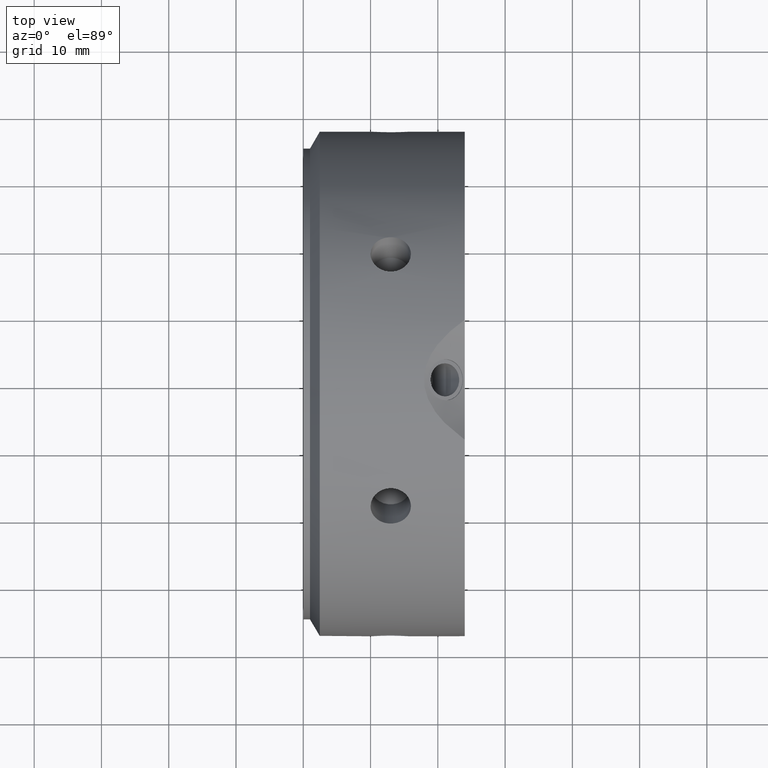
[diagram: clean part render]
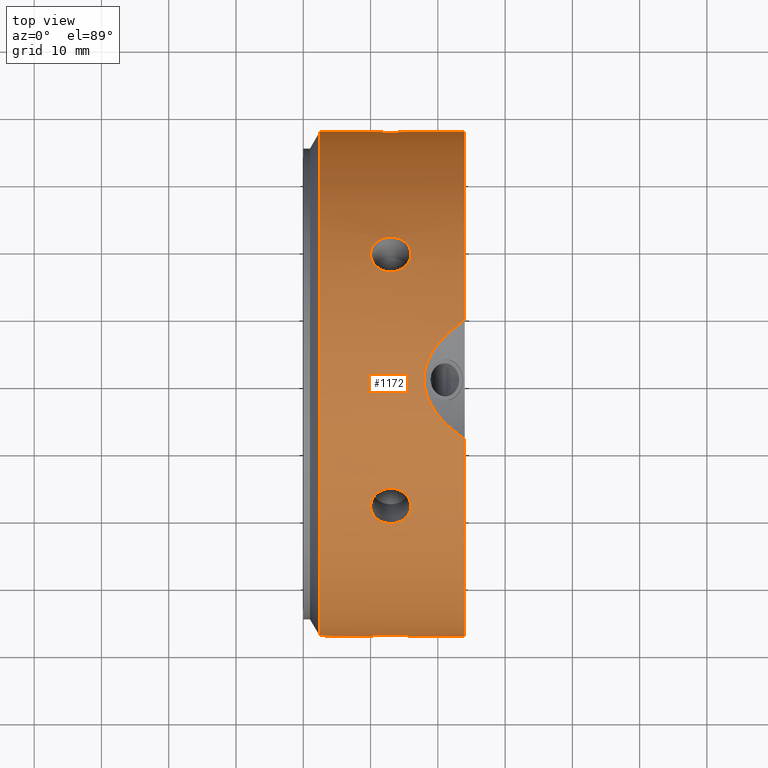
[diagram: same view with one face highlighted and labeled with its STEP entity id]
A machine part, top view. The second image highlights one B-rep face of the part: STEP entity #1172.
In plain terms, the highlighted cylindrical surface (bore or boss wall) has radius 37.5 mm, axis along (1, 0, 0).
Its self-contained STEP definition (entity closure, byte-faithful):
#90=CARTESIAN_POINT('',(10.0,18.750000000000028,32.475952641916436));
#91=VERTEX_POINT('',#90);
#92=CARTESIAN_POINT('',(16.0,18.750000000000032,32.475952641916429));
#93=VERTEX_POINT('',#92);
#94=CARTESIAN_POINT('',(10.0,18.750000000000032,32.475952641916429));
#95=CARTESIAN_POINT('',(10.0,19.076369678770643,32.287523020022888));
#96=CARTESIAN_POINT('',(10.075348362216783,19.421266801591457,32.081164064941156));
#97=CARTESIAN_POINT('',(10.381559582263105,20.050017124984954,31.692010116587475));
#98=CARTESIAN_POINT('',(10.61241354064348,20.334043270032332,31.509487611474405));
#99=CARTESIAN_POINT('',(11.144946142208356,20.78014357711179,31.217090805478342));
#100=CARTESIAN_POINT('',(11.482181087987303,20.972029455853018,31.087739552961011));
#101=CARTESIAN_POINT('',(12.221271273616487,21.225869223534648,30.914980928031845));
#102=CARTESIAN_POINT('',(12.62314023257499,21.287979902919012,30.871862782360836));
#103=CARTESIAN_POINT('',(13.37685976742501,21.287979902919012,30.871862782360836));
#104=CARTESIAN_POINT('',(13.778728726383513,21.225869223534648,30.914980928031845));
#105=CARTESIAN_POINT('',(14.517818912012697,20.972029455853018,31.087739552961011));
#106=CARTESIAN_POINT('',(14.855053857791647,20.78014357711179,31.217090805478339));
#107=CARTESIAN_POINT('',(15.387586459356527,20.334043270032332,31.509487611474405));
#108=CARTESIAN_POINT('',(15.618440417736895,20.050017124984954,31.692010116587475));
#109=CARTESIAN_POINT('',(15.924651637783214,19.421266801591454,32.081164064941156));
#110=CARTESIAN_POINT('',(16.0,19.076369678770643,32.287523020022888));
#111=CARTESIAN_POINT('',(16.0,18.750000000000032,32.475952641916429));
#112=B_SPLINE_CURVE_WITH_KNOTS('',3,(#94,#95,#96,#97,#98,#99,#100,#101,#102,#103,#104,#105,#106,#107,#108,#109,#110,#111),.UNSPECIFIED.,.F.,.U.,(4,2,2,2,2,2,2,2,4),(0.452231406727259,0.565289179863384,0.67834695299951,0.791404883227013,0.904462813454517,1.01752074368202,1.130578673909523,1.243636447045649,1.356694220181775),.UNSPECIFIED.);
#113=EDGE_CURVE('',#91,#93,#112,.T.);
#115=CARTESIAN_POINT('',(15.999999999999998,18.750000000000032,32.475952641916429));
#116=CARTESIAN_POINT('',(15.999999999999998,18.423630321229425,32.664382263809969));
#117=CARTESIAN_POINT('',(15.924651637783215,18.072469662419831,32.859892456324097));
#118=CARTESIAN_POINT('',(15.618440417736894,17.421077295465778,33.20982923484371));
#119=CARTESIAN_POINT('',(15.387586459356521,17.120995096751788,33.364541839237162));
#120=CARTESIAN_POINT('',(14.855053857791646,16.644721881234037,33.604677634805981));
#121=CARTESIAN_POINT('',(14.517818912012697,16.436757471172079,33.706180054164733));
#122=CARTESIAN_POINT('',(13.778728726383511,16.160224229419743,33.839632429003174));
#123=CARTESIAN_POINT('',(13.37685976742501,16.091827480212388,33.871862782360843));
#124=CARTESIAN_POINT('',(13.0,16.091827480212388,33.871862782360843));
#125=CARTESIAN_POINT('',(12.62314023257499,16.091827480212388,33.871862782360843));
#126=CARTESIAN_POINT('',(12.221271273616491,16.160224229419747,33.839632429003174));
#127=CARTESIAN_POINT('',(11.482181087987309,16.436757471172083,33.706180054164733));
#128=CARTESIAN_POINT('',(11.144946142208356,16.644721881234034,33.604677634805981));
#129=CARTESIAN_POINT('',(10.612413540643477,17.120995096751784,33.364541839237162));
#130=CARTESIAN_POINT('',(10.381559582263108,17.421077295465775,33.20982923484371));
#131=CARTESIAN_POINT('',(10.075348362216786,18.072469662419827,32.859892456324097));
#132=CARTESIAN_POINT('',(9.999999999999998,18.423630321229425,32.664382263809969));
#133=CARTESIAN_POINT('',(9.999999999999998,18.750000000000032,32.475952641916429));
#134=B_SPLINE_CURVE_WITH_KNOTS('',3,(#115,#116,#117,#118,#119,#120,#121,#122,#123,#124,#125,#126,#127,#128,#129,#130,#131,#132,#133),.UNSPECIFIED.,.F.,.U.,(4,2,2,2,3,2,2,2,4),(1.356694220181775,1.469751993317901,1.582809766454027,1.69586769668153,1.808925626909033,1.921983557136536,2.035041487364039,2.148099260500166,2.261157033636292),.UNSPECIFIED.);
#135=EDGE_CURVE('',#93,#91,#134,.T.);
#202=CARTESIAN_POINT('',(10.0,37.5,-2.498002E-014));
#203=VERTEX_POINT('',#202);
#204=CARTESIAN_POINT('',(16.0,37.5,-2.664535E-014));
#205=VERTEX_POINT('',#204);
#206=CARTESIAN_POINT('',(9.999999999999998,37.5,-2.393918E-014));
#207=CARTESIAN_POINT('',(9.999999999999998,37.5,-0.376859243787111));
#208=CARTESIAN_POINT('',(10.075348362216783,37.493736464011228,-0.778728391382963));
#209=CARTESIAN_POINT('',(10.381559582263105,37.471094420450669,-1.517819118256254));
#210=CARTESIAN_POINT('',(10.612413540643477,37.455038366784052,-1.855054227762787));
#211=CARTESIAN_POINT('',(11.144946142208356,37.424865458345749,-2.387586829327666));
#212=CARTESIAN_POINT('',(11.482181087987307,37.408786927025034,-2.618440501203736));
#213=CARTESIAN_POINT('',(12.221271273616489,37.386093452954327,-2.924651500971347));
#214=CARTESIAN_POINT('',(12.62314023257499,37.379807383131336,-3.000000000000025));
#215=CARTESIAN_POINT('',(13.37685976742501,37.379807383131336,-3.000000000000025));
#216=CARTESIAN_POINT('',(13.778728726383511,37.386093452954327,-2.924651500971347));
#217=CARTESIAN_POINT('',(14.517818912012695,37.408786927025034,-2.618440501203736));
#218=CARTESIAN_POINT('',(14.855053857791646,37.424865458345749,-2.387586829327666));
#219=CARTESIAN_POINT('',(15.387586459356523,37.455038366784052,-1.855054227762787));
#220=CARTESIAN_POINT('',(15.618440417736895,37.471094420450669,-1.517819118256254));
#221=CARTESIAN_POINT('',(15.924651637783217,37.493736464011228,-0.778728391382964));
#222=CARTESIAN_POINT('',(16.0,37.5,-0.376859243787112));
#223=CARTESIAN_POINT('',(16.0,37.5,-2.518818E-014));
#224=B_SPLINE_CURVE_WITH_KNOTS('',3,(#206,#207,#208,#209,#210,#211,#212,#213,#214,#215,#216,#217,#218,#219,#220,#221,#222,#223),.UNSPECIFIED.,.F.,.U.,(4,2,2,2,2,2,2,2,4),(0.452231406727258,0.565289179863384,0.67834695299951,0.791404883227014,0.904462813454517,1.01752074368202,1.130578673909523,1.243636447045649,1.356694220181775),.UNSPECIFIED.);
#225=EDGE_CURVE('',#203,#205,#224,.T.);
#227=CARTESIAN_POINT('',(16.0,37.5,-2.504941E-014));
#228=CARTESIAN_POINT('',(16.0,37.5,0.376859243787062));
#229=CARTESIAN_POINT('',(15.924651637783217,37.493736464011221,0.778728391382916));
#230=CARTESIAN_POINT('',(15.618440417736895,37.471094420450669,1.517819118256206));
#231=CARTESIAN_POINT('',(15.387586459356523,37.455038366784059,1.855054227762738));
#232=CARTESIAN_POINT('',(14.855053857791646,37.424865458345764,2.387586829327617));
#233=CARTESIAN_POINT('',(14.517818912012693,37.408786927025048,2.618440501203689));
#234=CARTESIAN_POINT('',(13.778728726383509,37.386093452954334,2.924651500971299));
#235=CARTESIAN_POINT('',(13.37685976742501,37.379807383131336,2.999999999999976));
#236=CARTESIAN_POINT('',(13.0,37.379807383131336,2.999999999999976));
#237=CARTESIAN_POINT('',(12.62314023257499,37.379807383131336,2.999999999999976));
#238=CARTESIAN_POINT('',(12.221271273616487,37.386093452954334,2.924651500971298));
#239=CARTESIAN_POINT('',(11.482181087987303,37.408786927025048,2.618440501203686));
#240=CARTESIAN_POINT('',(11.144946142208356,37.424865458345764,2.387586829327617));
#241=CARTESIAN_POINT('',(10.612413540643477,37.455038366784059,1.855054227762738));
#242=CARTESIAN_POINT('',(10.381559582263106,37.471094420450669,1.517819118256203));
#243=CARTESIAN_POINT('',(10.075348362216785,37.493736464011221,0.778728391382913));
#244=CARTESIAN_POINT('',(10.0,37.5,0.376859243787063));
#245=CARTESIAN_POINT('',(10.0,37.5,-2.373102E-014));
#246=B_SPLINE_CURVE_WITH_KNOTS('',3,(#227,#228,#229,#230,#231,#232,#233,#234,#235,#236,#237,#238,#239,#240,#241,#242,#243,#244,#245),.UNSPECIFIED.,.F.,.U.,(4,2,2,2,3,2,2,2,4),(1.356694220181775,1.469751993317901,1.582809766454027,1.69586769668153,1.808925626909033,1.921983557136536,2.035041487364039,2.148099260500165,2.261157033636291),.UNSPECIFIED.);
#247=EDGE_CURVE('',#205,#203,#246,.T.);
#314=CARTESIAN_POINT('',(10.0,18.749999999999993,-32.475952641916457));
#315=VERTEX_POINT('',#314);
#316=CARTESIAN_POINT('',(16.0,18.749999999999989,-32.475952641916457));
#317=VERTEX_POINT('',#316);
#318=CARTESIAN_POINT('',(9.999999999999998,18.749999999999986,-32.475952641916457));
#319=CARTESIAN_POINT('',(9.999999999999998,18.423630321229378,-32.664382263809998));
#320=CARTESIAN_POINT('',(10.075348362216785,18.072469662419785,-32.859892456324125));
#321=CARTESIAN_POINT('',(10.381559582263105,17.421077295465732,-33.209829234843738));
#322=CARTESIAN_POINT('',(10.61241354064348,17.120995096751741,-33.364541839237191));
#323=CARTESIAN_POINT('',(11.144946142208356,16.644721881233991,-33.604677634806002));
#324=CARTESIAN_POINT('',(11.482181087987303,16.436757471172037,-33.706180054164754));
#325=CARTESIAN_POINT('',(12.221271273616487,16.1602242294197,-33.839632429003203));
#326=CARTESIAN_POINT('',(12.62314023257499,16.091827480212338,-33.871862782360857));
#327=CARTESIAN_POINT('',(13.37685976742501,16.091827480212338,-33.871862782360857));
#328=CARTESIAN_POINT('',(13.778728726383509,16.1602242294197,-33.839632429003196));
#329=CARTESIAN_POINT('',(14.517818912012693,16.43675747117204,-33.706180054164754));
#330=CARTESIAN_POINT('',(14.855053857791642,16.644721881233991,-33.604677634806009));
#331=CARTESIAN_POINT('',(15.387586459356521,17.120995096751738,-33.364541839237198));
#332=CARTESIAN_POINT('',(15.618440417736892,17.421077295465725,-33.209829234843738));
#333=CARTESIAN_POINT('',(15.924651637783214,18.072469662419778,-32.859892456324125));
#334=CARTESIAN_POINT('',(16.0,18.423630321229375,-32.664382263809998));
#335=CARTESIAN_POINT('',(16.0,18.749999999999986,-32.475952641916457));
#336=B_SPLINE_CURVE_WITH_KNOTS('',3,(#318,#319,#320,#321,#322,#323,#324,#325,#326,#327,#328,#329,#330,#331,#332,#333,#334,#335),.UNSPECIFIED.,.F.,.U.,(4,2,2,2,2,2,2,2,4),(0.452231406727258,0.565289179863384,0.67834695299951,0.791404883227013,0.904462813454516,1.017520743682019,1.130578673909522,1.243636447045649,1.356694220181775),.UNSPECIFIED.);
#337=EDGE_CURVE('',#315,#317,#336,.T.);
#339=CARTESIAN_POINT('',(16.0,18.749999999999986,-32.475952641916457));
#340=CARTESIAN_POINT('',(16.0,19.076369678770597,-32.287523020022917));
#341=CARTESIAN_POINT('',(15.924651637783215,19.421266801591411,-32.081164064941191));
#342=CARTESIAN_POINT('',(15.618440417736899,20.050017124984908,-31.692010116587511));
#343=CARTESIAN_POINT('',(15.387586459356527,20.334043270032289,-31.509487611474434));
#344=CARTESIAN_POINT('',(14.855053857791647,20.780143577111744,-31.217090805478371));
#345=CARTESIAN_POINT('',(14.517818912012697,20.972029455852979,-31.087739552961043));
#346=CARTESIAN_POINT('',(13.778728726383513,21.225869223534609,-30.914980928031873));
#347=CARTESIAN_POINT('',(13.37685976742501,21.28797990291897,-30.871862782360861));
#348=CARTESIAN_POINT('',(13.0,21.28797990291897,-30.871862782360861));
#349=CARTESIAN_POINT('',(12.62314023257499,21.28797990291897,-30.871862782360861));
#350=CARTESIAN_POINT('',(12.221271273616487,21.225869223534609,-30.914980928031873));
#351=CARTESIAN_POINT('',(11.482181087987303,20.972029455852979,-31.087739552961043));
#352=CARTESIAN_POINT('',(11.144946142208356,20.780143577111744,-31.217090805478371));
#353=CARTESIAN_POINT('',(10.61241354064348,20.334043270032289,-31.509487611474434));
#354=CARTESIAN_POINT('',(10.381559582263103,20.050017124984908,-31.692010116587511));
#355=CARTESIAN_POINT('',(10.075348362216783,19.421266801591411,-32.081164064941191));
#356=CARTESIAN_POINT('',(10.0,19.076369678770593,-32.287523020022917));
#357=CARTESIAN_POINT('',(10.0,18.749999999999986,-32.475952641916457));
#358=B_SPLINE_CURVE_WITH_KNOTS('',3,(#339,#340,#341,#342,#343,#344,#345,#346,#347,#348,#349,#350,#351,#352,#353,#354,#355,#356,#357),.UNSPECIFIED.,.F.,.U.,(4,2,2,2,3,2,2,2,4),(1.356694220181775,1.469751993317901,1.582809766454027,1.69586769668153,1.808925626909033,1.921983557136536,2.035041487364039,2.148099260500165,2.261157033636291),.UNSPECIFIED.);
#359=EDGE_CURVE('',#317,#315,#358,.T.);
#426=CARTESIAN_POINT('',(10.0,-18.750000000000014,-32.475952641916443));
#427=VERTEX_POINT('',#426);
#428=CARTESIAN_POINT('',(16.0,-18.750000000000014,-32.475952641916443));
#429=VERTEX_POINT('',#428);
#430=CARTESIAN_POINT('',(9.999999999999998,-18.750000000000011,-32.475952641916443));
#431=CARTESIAN_POINT('',(9.999999999999998,-19.076369678770622,-32.287523020022903));
#432=CARTESIAN_POINT('',(10.075348362216783,-19.42126680159144,-32.081164064941177));
#433=CARTESIAN_POINT('',(10.381559582263105,-20.050017124984937,-31.692010116587493));
#434=CARTESIAN_POINT('',(10.612413540643477,-20.334043270032318,-31.509487611474416));
#435=CARTESIAN_POINT('',(11.144946142208356,-20.780143577111772,-31.21709080547835));
#436=CARTESIAN_POINT('',(11.482181087987307,-20.972029455853004,-31.087739552961033));
#437=CARTESIAN_POINT('',(12.221271273616489,-21.225869223534634,-30.914980928031866));
#438=CARTESIAN_POINT('',(12.62314023257499,-21.287979902918998,-30.87186278236085));
#439=CARTESIAN_POINT('',(13.37685976742501,-21.287979902918998,-30.87186278236085));
#440=CARTESIAN_POINT('',(13.778728726383511,-21.225869223534627,-30.914980928031859));
#441=CARTESIAN_POINT('',(14.517818912012695,-20.972029455853001,-31.087739552961029));
#442=CARTESIAN_POINT('',(14.855053857791642,-20.780143577111772,-31.21709080547835));
#443=CARTESIAN_POINT('',(15.387586459356521,-20.334043270032318,-31.509487611474416));
#444=CARTESIAN_POINT('',(15.618440417736892,-20.050017124984937,-31.692010116587493));
#445=CARTESIAN_POINT('',(15.924651637783214,-19.421266801591443,-32.081164064941177));
#446=CARTESIAN_POINT('',(16.0,-19.076369678770625,-32.287523020022888));
#447=CARTESIAN_POINT('',(16.0,-18.750000000000014,-32.475952641916436));
#448=B_SPLINE_CURVE_WITH_KNOTS('',3,(#430,#431,#432,#433,#434,#435,#436,#437,#438,#439,#440,#441,#442,#443,#444,#445,#446,#447),.UNSPECIFIED.,.F.,.U.,(4,2,2,2,2,2,2,2,4),(0.452231406727259,0.565289179863385,0.678346952999511,0.791404883227014,0.904462813454517,1.01752074368202,1.130578673909523,1.243636447045649,1.356694220181775),.UNSPECIFIED.);
#449=EDGE_CURVE('',#427,#429,#448,.T.);
#451=CARTESIAN_POINT('',(16.0,-18.750000000000014,-32.475952641916443));
#452=CARTESIAN_POINT('',(16.0,-18.423630321229403,-32.664382263809983));
#453=CARTESIAN_POINT('',(15.924651637783217,-18.07246966241981,-32.859892456324104));
#454=CARTESIAN_POINT('',(15.618440417736899,-17.421077295465757,-33.209829234843717));
#455=CARTESIAN_POINT('',(15.387586459356527,-17.12099509675177,-33.364541839237184));
#456=CARTESIAN_POINT('',(14.855053857791647,-16.64472188123402,-33.604677634805995));
#457=CARTESIAN_POINT('',(14.517818912012697,-16.436757471172061,-33.70618005416474));
#458=CARTESIAN_POINT('',(13.778728726383513,-16.160224229419725,-33.839632429003181));
#459=CARTESIAN_POINT('',(13.37685976742501,-16.091827480212366,-33.87186278236085));
#460=CARTESIAN_POINT('',(13.0,-16.091827480212366,-33.87186278236085));
#461=CARTESIAN_POINT('',(12.62314023257499,-16.091827480212366,-33.87186278236085));
#462=CARTESIAN_POINT('',(12.221271273616489,-16.160224229419722,-33.839632429003188));
#463=CARTESIAN_POINT('',(11.482181087987307,-16.436757471172058,-33.70618005416474));
#464=CARTESIAN_POINT('',(11.144946142208356,-16.644721881234013,-33.604677634805995));
#465=CARTESIAN_POINT('',(10.612413540643477,-17.120995096751763,-33.364541839237184));
#466=CARTESIAN_POINT('',(10.381559582263108,-17.421077295465754,-33.209829234843717));
#467=CARTESIAN_POINT('',(10.075348362216786,-18.072469662419806,-32.859892456324104));
#468=CARTESIAN_POINT('',(9.999999999999998,-18.4236303212294,-32.664382263809983));
#469=CARTESIAN_POINT('',(9.999999999999998,-18.750000000000011,-32.475952641916443));
#470=B_SPLINE_CURVE_WITH_KNOTS('',3,(#451,#452,#453,#454,#455,#456,#457,#458,#459,#460,#461,#462,#463,#464,#465,#466,#467,#468,#469),.UNSPECIFIED.,.F.,.U.,(4,2,2,2,3,2,2,2,4),(1.356694220181775,1.469751993317901,1.582809766454027,1.69586769668153,1.808925626909033,1.921983557136536,2.035041487364039,2.148099260500165,2.261157033636292),.UNSPECIFIED.);
#471=EDGE_CURVE('',#429,#427,#470,.T.);
#538=CARTESIAN_POINT('',(10.0,-37.5,1.040834E-014));
#539=VERTEX_POINT('',#538);
#540=CARTESIAN_POINT('',(16.0,-37.5,1.110223E-014));
#541=VERTEX_POINT('',#540);
#542=CARTESIAN_POINT('',(9.999999999999998,-37.5,9.298118E-015));
#543=CARTESIAN_POINT('',(9.999999999999998,-37.5,0.376859243787096));
#544=CARTESIAN_POINT('',(10.075348362216783,-37.493736464011228,0.778728391382949));
#545=CARTESIAN_POINT('',(10.381559582263105,-37.471094420450669,1.517819118256239));
#546=CARTESIAN_POINT('',(10.612413540643477,-37.455038366784059,1.855054227762772));
#547=CARTESIAN_POINT('',(11.144946142208356,-37.424865458345764,2.387586829327652));
#548=CARTESIAN_POINT('',(11.482181087987307,-37.408786927025034,2.618440501203722));
#549=CARTESIAN_POINT('',(12.221271273616489,-37.386093452954327,2.924651500971333));
#550=CARTESIAN_POINT('',(12.62314023257499,-37.379807383131336,3.000000000000011));
#551=CARTESIAN_POINT('',(13.37685976742501,-37.379807383131336,3.000000000000011));
#552=CARTESIAN_POINT('',(13.778728726383511,-37.386093452954327,2.924651500971333));
#553=CARTESIAN_POINT('',(14.517818912012695,-37.408786927025034,2.618440501203722));
#554=CARTESIAN_POINT('',(14.855053857791646,-37.424865458345764,2.387586829327652));
#555=CARTESIAN_POINT('',(15.387586459356521,-37.455038366784052,1.855054227762773));
#556=CARTESIAN_POINT('',(15.618440417736892,-37.471094420450662,1.517819118256241));
#557=CARTESIAN_POINT('',(15.924651637783214,-37.493736464011221,0.77872839138295));
#558=CARTESIAN_POINT('',(15.999999999999998,-37.5,0.376859243787098));
#559=CARTESIAN_POINT('',(15.999999999999998,-37.5,1.054712E-014));
#560=B_SPLINE_CURVE_WITH_KNOTS('',3,(#542,#543,#544,#545,#546,#547,#548,#549,#550,#551,#552,#553,#554,#555,#556,#557,#558,#559),.UNSPECIFIED.,.F.,.U.,(4,2,2,2,2,2,2,2,4),(0.452231406727258,0.565289179863384,0.678346952999511,0.791404883227014,0.904462813454517,1.01752074368202,1.130578673909523,1.243636447045649,1.356694220181775),.UNSPECIFIED.);
#561=EDGE_CURVE('',#539,#541,#560,.T.);
#563=CARTESIAN_POINT('',(15.999999999999998,-37.5,1.006140E-014));
#564=CARTESIAN_POINT('',(15.999999999999998,-37.5,-0.376859243787077));
#565=CARTESIAN_POINT('',(15.924651637783215,-37.493736464011221,-0.77872839138293));
#566=CARTESIAN_POINT('',(15.618440417736894,-37.471094420450662,-1.51781911825622));
#567=CARTESIAN_POINT('',(15.387586459356523,-37.455038366784059,-1.855054227762753));
#568=CARTESIAN_POINT('',(14.855053857791646,-37.424865458345764,-2.387586829327631));
#569=CARTESIAN_POINT('',(14.517818912012693,-37.408786927025041,-2.618440501203704));
#570=CARTESIAN_POINT('',(13.778728726383509,-37.386093452954327,-2.924651500971314));
#571=CARTESIAN_POINT('',(13.37685976742501,-37.379807383131336,-2.99999999999999));
#572=CARTESIAN_POINT('',(13.0,-37.379807383131336,-2.99999999999999));
#573=CARTESIAN_POINT('',(12.62314023257499,-37.379807383131336,-2.99999999999999));
#574=CARTESIAN_POINT('',(12.221271273616489,-37.386093452954327,-2.924651500971313));
#575=CARTESIAN_POINT('',(11.482181087987307,-37.408786927025041,-2.618440501203702));
#576=CARTESIAN_POINT('',(11.144946142208356,-37.424865458345764,-2.387586829327632));
#577=CARTESIAN_POINT('',(10.612413540643477,-37.455038366784059,-1.855054227762753));
#578=CARTESIAN_POINT('',(10.381559582263106,-37.471094420450662,-1.517819118256217));
#579=CARTESIAN_POINT('',(10.075348362216785,-37.493736464011221,-0.778728391382927));
#580=CARTESIAN_POINT('',(9.999999999999998,-37.5,-0.376859243787077));
#581=CARTESIAN_POINT('',(9.999999999999998,-37.5,9.436896E-015));
#582=B_SPLINE_CURVE_WITH_KNOTS('',3,(#563,#564,#565,#566,#567,#568,#569,#570,#571,#572,#573,#574,#575,#576,#577,#578,#579,#580,#581),.UNSPECIFIED.,.F.,.U.,(4,2,2,2,3,2,2,2,4),(1.356694220181775,1.469751993317901,1.582809766454027,1.695867696681531,1.808925626909034,1.921983557136537,2.035041487364039,2.148099260500166,2.261157033636292),.UNSPECIFIED.);
#583=EDGE_CURVE('',#541,#539,#582,.T.);
#687=CARTESIAN_POINT('',(10.0,-18.749999999999996,32.47595264191645));
#688=VERTEX_POINT('',#687);
#689=CARTESIAN_POINT('',(16.0,-18.749999999999993,32.47595264191645));
#690=VERTEX_POINT('',#689);
#691=CARTESIAN_POINT('',(10.0,-18.749999999999996,32.47595264191645));
#692=CARTESIAN_POINT('',(10.0,-18.423630321229385,32.664382263809991));
#693=CARTESIAN_POINT('',(10.075348362216785,-18.072469662419795,32.859892456324118));
#694=CARTESIAN_POINT('',(10.381559582263105,-17.421077295465743,33.209829234843731));
#695=CARTESIAN_POINT('',(10.612413540643475,-17.120995096751749,33.364541839237191));
#696=CARTESIAN_POINT('',(11.144946142208354,-16.644721881233998,33.604677634806002));
#697=CARTESIAN_POINT('',(11.482181087987309,-16.43675747117204,33.706180054164754));
#698=CARTESIAN_POINT('',(12.221271273616491,-16.160224229419704,33.839632429003196));
#699=CARTESIAN_POINT('',(12.62314023257499,-16.091827480212345,33.871862782360857));
#700=CARTESIAN_POINT('',(13.37685976742501,-16.091827480212345,33.871862782360857));
#701=CARTESIAN_POINT('',(13.778728726383509,-16.160224229419704,33.839632429003196));
#702=CARTESIAN_POINT('',(14.517818912012693,-16.43675747117204,33.706180054164754));
#703=CARTESIAN_POINT('',(14.855053857791646,-16.644721881233995,33.604677634806002));
#704=CARTESIAN_POINT('',(15.387586459356521,-17.120995096751741,33.364541839237191));
#705=CARTESIAN_POINT('',(15.618440417736892,-17.421077295465736,33.209829234843738));
#706=CARTESIAN_POINT('',(15.924651637783215,-18.072469662419792,32.859892456324125));
#707=CARTESIAN_POINT('',(16.0,-18.423630321229389,32.664382263809991));
#708=CARTESIAN_POINT('',(16.0,-18.749999999999996,32.47595264191645));
#709=B_SPLINE_CURVE_WITH_KNOTS('',3,(#691,#692,#693,#694,#695,#696,#697,#698,#699,#700,#701,#702,#703,#704,#705,#706,#707,#708),.UNSPECIFIED.,.F.,.U.,(4,2,2,2,2,2,2,2,4),(0.452231406727258,0.565289179863384,0.67834695299951,0.791404883227014,0.904462813454517,1.01752074368202,1.130578673909523,1.243636447045649,1.356694220181775),.UNSPECIFIED.);
#710=EDGE_CURVE('',#688,#690,#709,.T.);
#712=CARTESIAN_POINT('',(16.0,-18.749999999999996,32.47595264191645));
#713=CARTESIAN_POINT('',(16.0,-19.076369678770607,32.28752302002291));
#714=CARTESIAN_POINT('',(15.924651637783215,-19.421266801591418,32.081164064941184));
#715=CARTESIAN_POINT('',(15.618440417736894,-20.050017124984919,31.6920101165875));
#716=CARTESIAN_POINT('',(15.387586459356521,-20.334043270032296,31.50948761147443));
#717=CARTESIAN_POINT('',(14.855053857791646,-20.780143577111755,31.21709080547836));
#718=CARTESIAN_POINT('',(14.517818912012693,-20.972029455852987,31.08773955296104));
#719=CARTESIAN_POINT('',(13.778728726383509,-21.225869223534609,30.91498092803187));
#720=CARTESIAN_POINT('',(13.37685976742501,-21.287979902918977,30.871862782360857));
#721=CARTESIAN_POINT('',(13.0,-21.287979902918977,30.871862782360857));
#722=CARTESIAN_POINT('',(12.62314023257499,-21.287979902918977,30.871862782360857));
#723=CARTESIAN_POINT('',(12.221271273616489,-21.225869223534616,30.914980928031873));
#724=CARTESIAN_POINT('',(11.482181087987307,-20.972029455852987,31.087739552961043));
#725=CARTESIAN_POINT('',(11.144946142208356,-20.780143577111755,31.21709080547836));
#726=CARTESIAN_POINT('',(10.61241354064348,-20.334043270032296,31.50948761147443));
#727=CARTESIAN_POINT('',(10.381559582263103,-20.050017124984912,31.692010116587504));
#728=CARTESIAN_POINT('',(10.075348362216783,-19.421266801591418,32.081164064941191));
#729=CARTESIAN_POINT('',(9.999999999999998,-19.076369678770604,32.28752302002291));
#730=CARTESIAN_POINT('',(9.999999999999998,-18.749999999999996,32.47595264191645));
#731=B_SPLINE_CURVE_WITH_KNOTS('',3,(#712,#713,#714,#715,#716,#717,#718,#719,#720,#721,#722,#723,#724,#725,#726,#727,#728,#729,#730),.UNSPECIFIED.,.F.,.U.,(4,2,2,2,3,2,2,2,4),(1.356694220181775,1.469751993317901,1.582809766454027,1.695867696681531,1.808925626909034,1.921983557136537,2.035041487364039,2.148099260500166,2.261157033636291),.UNSPECIFIED.);
#732=EDGE_CURVE('',#690,#688,#731,.T.);
#873=CARTESIAN_POINT('',(23.999999999999993,27.084205445662803,-25.936380151770003));
#874=VERTEX_POINT('',#873);
#875=CARTESIAN_POINT('',(23.999999999999993,36.003666816474713,-10.487419881375864));
#876=VERTEX_POINT('',#875);
#884=CARTESIAN_POINT('',(23.999999999999993,36.003666816474713,-10.48741988137586));
#885=CARTESIAN_POINT('',(23.591222852768247,35.920820448086161,-10.771834263383521));
#886=CARTESIAN_POINT('',(23.192951334266763,35.832224315166272,-11.063487322551966));
#887=CARTESIAN_POINT('',(21.578974394589512,35.433595490792754,-12.317137056092534));
#888=CARTESIAN_POINT('',(20.33738308284477,35.026038043125297,-13.465343061169888));
#889=CARTESIAN_POINT('',(18.96768945608455,34.216314970598631,-15.361185188594394));
#890=CARTESIAN_POINT('',(18.592377661744834,33.913037882892873,-16.02265118637844));
#891=CARTESIAN_POINT('',(18.077159653087154,33.240966849811372,-17.374049973465699));
#892=CARTESIAN_POINT('',(17.937822173508952,32.87196067057635,-18.064093974155849));
#893=CARTESIAN_POINT('',(17.937822173508952,32.079944613256515,-19.435906025844197));
#894=CARTESIAN_POINT('',(18.077159653087151,31.666852068547303,-20.100496751560236));
#895=CARTESIAN_POINT('',(18.592377661744827,30.832541904827014,-21.358226732900086));
#896=CARTESIAN_POINT('',(18.967689456084546,30.411334090859292,-21.951605394131061));
#897=CARTESIAN_POINT('',(20.33738308284477,29.174348183208259,-23.600767208681805));
#898=CARTESIAN_POINT('',(21.578974394589522,28.383751337867142,-24.527825314402037));
#899=CARTESIAN_POINT('',(23.192951334266766,27.497373233360186,-25.499872869760509));
#900=CARTESIAN_POINT('',(23.591222852768247,27.289092341488818,-25.722425901130407));
#901=CARTESIAN_POINT('',(23.999999999999993,27.084205445662807,-25.93638015177001));
#902=B_SPLINE_CURVE_WITH_KNOTS('',3,(#884,#885,#886,#887,#888,#889,#890,#891,#892,#893,#894,#895,#896,#897,#898,#899,#900,#901),.UNSPECIFIED.,.F.,.U.,(4,2,2,2,2,2,2,2,4),(2.249574857920945,2.39901854660144,2.874228180993344,3.111832998189297,3.349437815385249,3.587042632581202,3.824647449777154,4.299857084169059,4.449300772849552),.UNSPECIFIED.);
#903=EDGE_CURVE('',#876,#874,#902,.T.);
#1044=CARTESIAN_POINT('',(23.999999999999989,-36.003666816474713,-10.487419881375832));
#1045=VERTEX_POINT('',#1044);
#1046=CARTESIAN_POINT('',(24.0,-27.084205445662825,-25.936380151769992));
#1047=VERTEX_POINT('',#1046);
#1055=CARTESIAN_POINT('',(24.000000000000007,-27.084205445662821,-25.936380151769988));
#1056=CARTESIAN_POINT('',(23.545226590725825,-27.312146544526584,-25.69835142474599));
#1057=CARTESIAN_POINT('',(23.103526831479329,-27.544244549262483,-25.449731772394259));
#1058=CARTESIAN_POINT('',(21.478498178872204,-28.446747993374125,-24.454342139774003));
#1059=CARTESIAN_POINT('',(20.268284854862074,-29.2265871826636,-23.535054474524031));
#1060=CARTESIAN_POINT('',(18.936124431938136,-30.445308145741052,-21.904195461466568));
#1061=CARTESIAN_POINT('',(18.571711276666115,-30.86008892884832,-21.318018767266075));
#1062=CARTESIAN_POINT('',(18.07227208265337,-31.680993626663355,-20.077790112192634));
#1063=CARTESIAN_POINT('',(17.937822173508962,-32.087107485669073,-19.423499566897505));
#1064=CARTESIAN_POINT('',(17.937822173508962,-32.864797798163828,-18.076500433102471));
#1065=CARTESIAN_POINT('',(18.07227208265337,-33.22837310234253,-17.397650241727021));
#1066=CARTESIAN_POINT('',(18.571711276666115,-33.891990275230015,-16.066611591796494));
#1067=CARTESIAN_POINT('',(18.936124431938151,-34.192243791960379,-15.414312549523753));
#1068=CARTESIAN_POINT('',(20.268284854862088,-34.995248645720238,-13.543439728845305));
#1069=CARTESIAN_POINT('',(21.478498178872208,-35.401455522567666,-12.408435347428973));
#1070=CARTESIAN_POINT('',(23.103526831479329,-35.81223650902465,-11.129149621515218));
#1071=CARTESIAN_POINT('',(23.545226590725818,-35.911498441473341,-10.80383702707039));
#1072=CARTESIAN_POINT('',(23.999999999999993,-36.003666816474713,-10.487419881375837));
#1073=B_SPLINE_CURVE_WITH_KNOTS('',3,(#1055,#1056,#1057,#1058,#1059,#1060,#1061,#1062,#1063,#1064,#1065,#1066,#1067,#1068,#1069,#1070,#1071,#1072),.UNSPECIFIED.,.F.,.U.,(4,2,2,2,2,2,2,2,4),(2.180258437133951,2.346212664770185,2.812826852267037,3.046133946015463,3.279441039763889,3.512748133512316,3.746055227260742,4.212669414757595,4.378623642393827),.UNSPECIFIED.);
#1074=EDGE_CURVE('',#1047,#1045,#1073,.T.);
#1082=CARTESIAN_POINT('',(13.221687836487027,0.0,0.0));
#1083=DIRECTION('',(1.0,0.0,0.0));
#1084=DIRECTION('',(0.0,1.0,0.0));
#1085=AXIS2_PLACEMENT_3D('',#1082,#1083,#1084);
#1086=CYLINDRICAL_SURFACE('',#1085,37.5);
#1087=CARTESIAN_POINT('',(2.443375672974056,37.499999999999993,0.0));
#1088=VERTEX_POINT('',#1087);
#1089=CARTESIAN_POINT('',(2.443375672974056,0.0,0.0));
#1090=DIRECTION('',(1.0,0.0,0.0));
#1091=DIRECTION('',(0.0,1.0,0.0));
#1092=AXIS2_PLACEMENT_3D('',#1089,#1090,#1091);
#1093=CIRCLE('',#1092,37.499999999999993);
#1094=EDGE_CURVE('',#1088,#1088,#1093,.T.);
#1095=ORIENTED_EDGE('',*,*,#1094,.T.);
#1096=EDGE_LOOP('',(#1095));
#1097=FACE_OUTER_BOUND('',#1096,.T.);
#1098=ORIENTED_EDGE('',*,*,#113,.T.);
#1099=ORIENTED_EDGE('',*,*,#135,.T.);
#1100=EDGE_LOOP('',(#1098,#1099));
#1101=FACE_BOUND('',#1100,.T.);
#1102=ORIENTED_EDGE('',*,*,#225,.T.);
#1103=ORIENTED_EDGE('',*,*,#247,.T.);
#1104=EDGE_LOOP('',(#1102,#1103));
#1105=FACE_BOUND('',#1104,.T.);
#1106=ORIENTED_EDGE('',*,*,#337,.T.);
#1107=ORIENTED_EDGE('',*,*,#359,.T.);
#1108=EDGE_LOOP('',(#1106,#1107));
#1109=FACE_BOUND('',#1108,.T.);
#1110=ORIENTED_EDGE('',*,*,#449,.T.);
#1111=ORIENTED_EDGE('',*,*,#471,.T.);
#1112=EDGE_LOOP('',(#1110,#1111));
#1113=FACE_BOUND('',#1112,.T.);
#1114=ORIENTED_EDGE('',*,*,#561,.T.);
#1115=ORIENTED_EDGE('',*,*,#583,.T.);
#1116=EDGE_LOOP('',(#1114,#1115));
#1117=FACE_BOUND('',#1116,.T.);
#1118=ORIENTED_EDGE('',*,*,#710,.T.);
#1119=ORIENTED_EDGE('',*,*,#732,.T.);
#1120=EDGE_LOOP('',(#1118,#1119));
#1121=FACE_BOUND('',#1120,.T.);
#1122=ORIENTED_EDGE('',*,*,#903,.T.);
#1123=CARTESIAN_POINT('',(23.999999999999993,0.0,0.0));
#1124=DIRECTION('',(1.0,0.0,0.0));
#1125=DIRECTION('',(0.0,1.0,0.0));
#1126=AXIS2_PLACEMENT_3D('',#1123,#1124,#1125);
#1127=CIRCLE('',#1126,37.5);
#1128=EDGE_CURVE('',#1047,#874,#1127,.T.);
#1129=ORIENTED_EDGE('',*,*,#1128,.F.);
#1130=ORIENTED_EDGE('',*,*,#1074,.T.);
#1131=CARTESIAN_POINT('',(23.999999999999993,-8.919461370811899,36.423800033145838));
#1132=VERTEX_POINT('',#1131);
#1133=CARTESIAN_POINT('',(23.999999999999993,0.0,0.0));
#1134=DIRECTION('',(1.0,0.0,0.0));
#1135=DIRECTION('',(0.0,1.0,0.0));
#1136=AXIS2_PLACEMENT_3D('',#1133,#1134,#1135);
#1137=CIRCLE('',#1136,37.5);
#1138=EDGE_CURVE('',#1132,#1045,#1137,.T.);
#1139=ORIENTED_EDGE('',*,*,#1138,.F.);
#1140=CARTESIAN_POINT('',(23.999999999999993,8.919461370811899,36.423800033145838));
#1141=VERTEX_POINT('',#1140);
#1142=CARTESIAN_POINT('',(23.999999999999993,-8.919461370811895,36.423800033145838));
#1143=CARTESIAN_POINT('',(22.940521618444212,-8.173707418678708,36.606420285896213));
#1144=CARTESIAN_POINT('',(21.954688080069889,-7.370227704359688,36.779402366628375));
#1145=CARTESIAN_POINT('',(20.252614754639101,-5.652443625948842,37.081355389187365));
#1146=CARTESIAN_POINT('',(19.43469508800975,-4.641811330155842,37.228417655830356));
#1147=CARTESIAN_POINT('',(18.56244908114158,-2.971189676152273,37.386293195722764));
#1148=CARTESIAN_POINT('',(18.329748386546751,-2.388073635830711,37.428606267505252));
#1149=CARTESIAN_POINT('',(18.017247430995397,-1.200380619111094,37.485497852214358));
#1150=CARTESIAN_POINT('',(17.937822173508952,-0.595701348396182,37.5));
#1151=CARTESIAN_POINT('',(17.937822173508952,0.595701348396182,37.5));
#1152=CARTESIAN_POINT('',(18.017247430995397,1.200380619111094,37.485497852214358));
#1153=CARTESIAN_POINT('',(18.329748386546751,2.388073635830711,37.428606267505252));
#1154=CARTESIAN_POINT('',(18.56244908114158,2.971189676152273,37.386293195722764));
#1155=CARTESIAN_POINT('',(19.43469508800975,4.641811330155842,37.228417655830356));
#1156=CARTESIAN_POINT('',(20.252614754639101,5.652443625948842,37.081355389187365));
#1157=CARTESIAN_POINT('',(21.954688080069893,7.370227704359687,36.779402366628375));
#1158=CARTESIAN_POINT('',(22.940521618444212,8.173707418678706,36.606420285896213));
#1159=CARTESIAN_POINT('',(24.0,8.919461370811897,36.423800033145838));
#1160=B_SPLINE_CURVE_WITH_KNOTS('',3,(#1142,#1143,#1144,#1145,#1146,#1147,#1148,#1149,#1150,#1151,#1152,#1153,#1154,#1155,#1156,#1157,#1158,#1159),.UNSPECIFIED.,.F.,.U.,(4,2,2,2,2,2,2,2,4),(1.253688320910786,1.627370119973719,1.984790929011428,2.163501333530283,2.342211738049137,2.520922142567992,2.699632547086846,3.057053356124555,3.430735155187488),.UNSPECIFIED.);
#1161=EDGE_CURVE('',#1132,#1141,#1160,.T.);
#1162=ORIENTED_EDGE('',*,*,#1161,.T.);
#1163=CARTESIAN_POINT('',(23.999999999999993,0.0,0.0));
#1164=DIRECTION('',(1.0,0.0,0.0));
#1165=DIRECTION('',(0.0,1.0,0.0));
#1166=AXIS2_PLACEMENT_3D('',#1163,#1164,#1165);
#1167=CIRCLE('',#1166,37.5);
#1168=EDGE_CURVE('',#876,#1141,#1167,.T.);
#1169=ORIENTED_EDGE('',*,*,#1168,.F.);
#1170=EDGE_LOOP('',(#1122,#1129,#1130,#1139,#1162,#1169));
#1171=FACE_BOUND('',#1170,.T.);
#1172=ADVANCED_FACE('',(#1097,#1101,#1105,#1109,#1113,#1117,#1121,#1171),#1086,.T.);